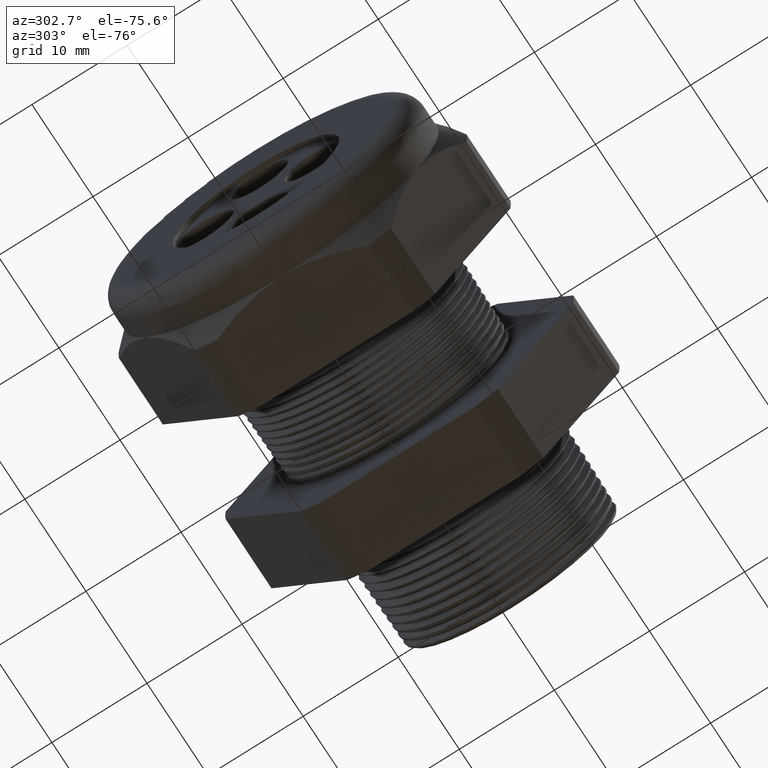
[diagram: clean part render]
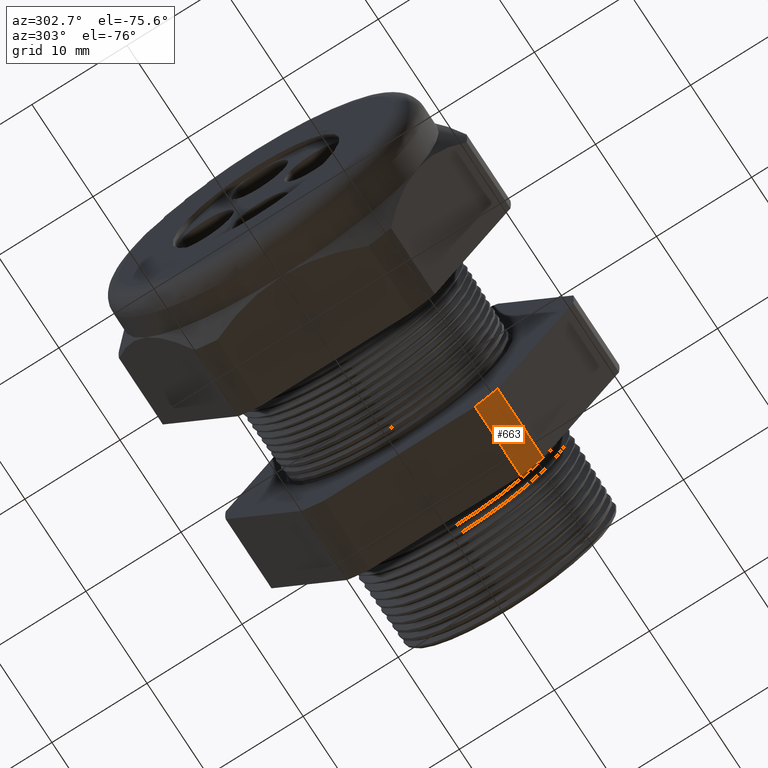
[diagram: same view with one face highlighted and labeled with its STEP entity id]
A machine part, auxiliary view. The second image highlights one B-rep face of the part: STEP entity #663.
In plain terms, the highlighted cylindrical surface (partial cylindrical patch) has radius 18.3261 mm, axis along (-1, 0, 0).
Its self-contained STEP definition (entity closure, byte-faithful):
#438 = EDGE_CURVE ( 'NONE', #462, #439, #2042, .T. ) ;
#439 = VERTEX_POINT ( 'NONE', #2037 ) ;
#462 = VERTEX_POINT ( 'NONE', #2056 ) ;
#519 = VERTEX_POINT ( 'NONE', #2195 ) ;
#521 = EDGE_CURVE ( 'NONE', #519, #522, #2194, .T. ) ;
#522 = VERTEX_POINT ( 'NONE', #2189 ) ;
#661 = EDGE_CURVE ( 'NONE', #462, #522, #2397, .T. ) ;
#663 = ADVANCED_FACE ( 'NONE', ( #2393 ), #2391, .T. ) ;
#664 = EDGE_LOOP ( 'NONE', ( #665, #666, #667, #669 ) ) ;
#665 = ORIENTED_EDGE ( 'NONE', *, *, #661, .T. ) ;
#666 = ORIENTED_EDGE ( 'NONE', *, *, #521, .F. ) ;
#667 = ORIENTED_EDGE ( 'NONE', *, *, #668, .F. ) ;
#668 = EDGE_CURVE ( 'NONE', #439, #519, #2392, .T. ) ;
#669 = ORIENTED_EDGE ( 'NONE', *, *, #438, .F. ) ;
#2037 = CARTESIAN_POINT ( 'NONE',  ( -0.3100000000000000000, -0.3131489262315934100, -0.6500000000000001300 ) ) ;
#2038 = DIRECTION ( 'NONE',  ( 0.0000000000000000000, 0.0000000000000000000, -1.000000000000000000 ) ) ;
#2039 = DIRECTION ( 'NONE',  ( 1.000000000000000000, 0.0000000000000000000, 0.0000000000000000000 ) ) ;
#2040 = CARTESIAN_POINT ( 'NONE',  ( -0.3100000000000000000, 0.0000000000000000000, 0.0000000000000000000 ) ) ;
#2041 = AXIS2_PLACEMENT_3D ( 'NONE', #2040, #2039, #2038 ) ;
#2042 = CIRCLE ( 'NONE', #2041, 0.7215000000000000300 ) ;
#2056 = CARTESIAN_POINT ( 'NONE',  ( -0.3100000000000000000, -0.4063420493440881300, -0.5961949252843793400 ) ) ;
#2189 = CARTESIAN_POINT ( 'NONE',  ( -0.6052755905511810800, -0.4063420493440881300, -0.5961949252843793400 ) ) ;
#2190 = DIRECTION ( 'NONE',  ( 0.0000000000000000000, 0.0000000000000000000, 1.000000000000000000 ) ) ;
#2191 = DIRECTION ( 'NONE',  ( -1.000000000000000000, 0.0000000000000000000, 0.0000000000000000000 ) ) ;
#2192 = CARTESIAN_POINT ( 'NONE',  ( -0.6052755905511810800, 0.0000000000000000000, 0.0000000000000000000 ) ) ;
#2193 = AXIS2_PLACEMENT_3D ( 'NONE', #2192, #2191, #2190 ) ;
#2194 = CIRCLE ( 'NONE', #2193, 0.7215000000000000300 ) ;
#2195 = CARTESIAN_POINT ( 'NONE',  ( -0.6052755905511810800, -0.3131489262315934100, -0.6500000000000001300 ) ) ;
#2384 = DIRECTION ( 'NONE',  ( -1.000000000000000000, 0.0000000000000000000, 0.0000000000000000000 ) ) ;
#2385 = VECTOR ( 'NONE', #2384, 39.37007874015748100 ) ;
#2386 = CARTESIAN_POINT ( 'NONE',  ( 0.1200000000000000900, -0.3131489262315934100, -0.6500000000000001300 ) ) ;
#2387 = DIRECTION ( 'NONE',  ( 0.0000000000000000000, 0.0000000000000000000, 1.000000000000000000 ) ) ;
#2388 = DIRECTION ( 'NONE',  ( -1.000000000000000000, 0.0000000000000000000, 0.0000000000000000000 ) ) ;
#2389 = CARTESIAN_POINT ( 'NONE',  ( 0.1200000000000000900, 0.0000000000000000000, 0.0000000000000000000 ) ) ;
#2390 = AXIS2_PLACEMENT_3D ( 'NONE', #2389, #2388, #2387 ) ;
#2391 = CYLINDRICAL_SURFACE ( 'NONE', #2390, 0.7215000000000000300 ) ;
#2392 = LINE ( 'NONE', #2386, #2385 ) ;
#2393 = FACE_OUTER_BOUND ( 'NONE', #664, .T. ) ;
#2394 = DIRECTION ( 'NONE',  ( -1.000000000000000000, 0.0000000000000000000, 0.0000000000000000000 ) ) ;
#2395 = VECTOR ( 'NONE', #2394, 39.37007874015748100 ) ;
#2396 = CARTESIAN_POINT ( 'NONE',  ( 0.1200000000000000900, -0.4063420493440881300, -0.5961949252843793400 ) ) ;
#2397 = LINE ( 'NONE', #2396, #2395 ) ;